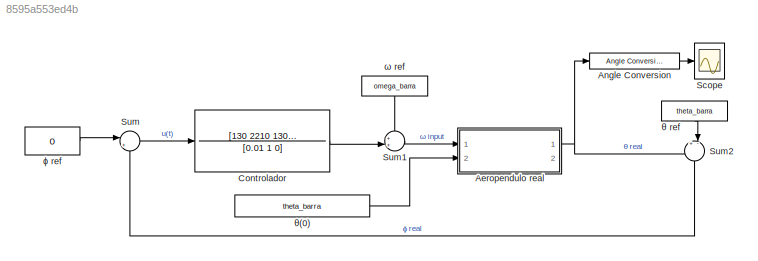
MODEL slx_8595a553ed4b
KIND model
CONFIG AbsTol = auto
CONFIG EnableMultiTasking = off
CONFIG FixedStep = 1e-3
CONFIG MaxStep = auto
CONFIG MinStep = auto
CONFIG RelTol = 1e-3
CONFIG SampleTimeConstraint = Unconstrained
CONFIG SolverName = ode4
CONFIG StartTime = 0.0
CONFIG StopTime = 10
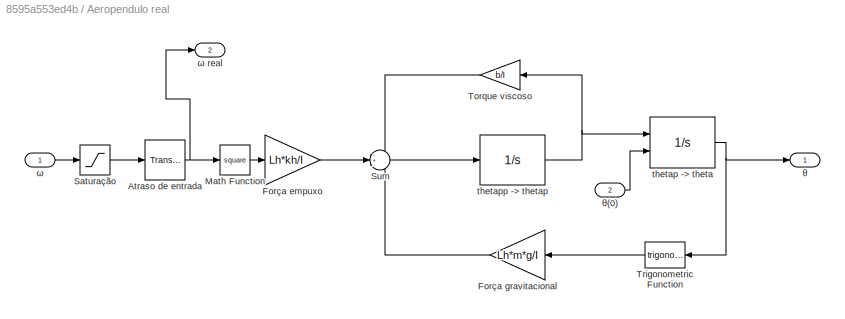
BLOCK [SubSystem] Aeropendulo real
  Ports = [2, 2]
  RequestExecContextInheritance = off
BLOCK [TransportDelay] Aeropendulo real/Atraso de entrada
  DelayTime = 5e-3
  Ports = [1, 1]
BLOCK [Gain] Aeropendulo real/Força empuxo
  Gain = Lh*kh/I
  OutMax = [375]
  OutMin = [0]
BLOCK [Gain] Aeropendulo real/Força gravitacional
  Gain = Lh*m*g/I
  NameLocation = top
BLOCK [Math] Aeropendulo real/Math Function
  Operator = square
  Ports = [1, 1]
BLOCK [Saturate] Aeropendulo real/Saturação
  LowerLimit = 0
  UpperLimit = 400
BLOCK [Sum] Aeropendulo real/Sum
  Inputs = -+-
  Ports = [3, 1]
BLOCK [Gain] Aeropendulo real/Torque viscoso
  Gain = b/I
  NameLocation = top
BLOCK [Trigonometry] Aeropendulo real/Trigonometric Function
  NameLocation = top
  Ports = [1, 1]
BLOCK [Integrator] Aeropendulo real/thetap -> theta
  InitialConditionSource = external
  Ports = [2, 1]
  UpperSaturationLimit = 120*pi/180
BLOCK [Integrator] Aeropendulo real/thetapp -> thetap
  Ports = [1, 1]
BLOCK [Outport] Aeropendulo real/θ
BLOCK [Inport] Aeropendulo real/θ(0)
  Port = 2
BLOCK [Inport] Aeropendulo real/ω
BLOCK [Outport] Aeropendulo real/ω real
  Port = 2
BLOCK [Reference] Angle Conversion  REF=aerolibconvert2/Angle Conversion
  Ports = [1, 1]
  SourceBlock = aerolibconvert2/Angle Conversion
  SourceProductBaseCode = AE
  SourceType = Angle Conversion
BLOCK [TransferFcn] Controlador
  Denominator = [0.01 1 0]
  Numerator = [130 2210 13000]
BLOCK [Scope] Scope
  Floating = off
  NumInputPorts = 1
  Ports = [1]
  ScopeSpecificationString = Simulink.scopes.TimeScopeBlockCfg('CurrentConfiguration', extmgr.ConfigurationSet(extmgr.Configuration('Core','General UI',true,'FigureColor',[1 1 1]),extmgr.Configuration('Core','Source UI',true),extmgr.Configuration('Sources','WiredSimulink',true),extmgr.Configuration('Visuals','Time Domain',true,'SerializedDisplays',{struct('MinYLimReal','78.02767','MaxYLimReal','94.85804','YLabelReal','','MinY...<+1676ch>
BLOCK [Sum] Sum
  Inputs = |+-
  Ports = [2, 1]
BLOCK [Sum] Sum1
  Inputs = ++|
  Ports = [2, 1]
BLOCK [Sum] Sum2
  Inputs = +-|
  NameLocation = left
  Ports = [2, 1]
BLOCK [Constant] θ ref
  NameLocation = left
  Value = theta_barra
BLOCK [Constant] θ(0)
  Value = theta_barra
BLOCK [Constant] ω ref
  NameLocation = left
  Value = omega_barra
BLOCK [Constant] ϕ ref
  Value = 0
NET Aeropendulo real/Atraso de entrada:1 -> Aeropendulo real/Math Function:1, Aeropendulo real/ω real:1
LINE Aeropendulo real/Força empuxo:1 -> Aeropendulo real/Sum:2
LINE Aeropendulo real/Força gravitacional:1 -> Aeropendulo real/Sum:3
LINE Aeropendulo real/Math Function:1 -> Aeropendulo real/Força empuxo:1
LINE Aeropendulo real/Saturação:1 -> Aeropendulo real/Atraso de entrada:1
LINE Aeropendulo real/Sum:1 -> Aeropendulo real/thetapp -> thetap:1
LINE Aeropendulo real/Torque viscoso:1 -> Aeropendulo real/Sum:1
LINE Aeropendulo real/Trigonometric Function:1 -> Aeropendulo real/Força gravitacional:1
NET Aeropendulo real/thetap -> theta:1 -> Aeropendulo real/Trigonometric Function:1, Aeropendulo real/θ:1
NET Aeropendulo real/thetapp -> thetap:1 -> Aeropendulo real/Torque viscoso:1, Aeropendulo real/thetap -> theta:1
LINE Aeropendulo real/θ(0):1 -> Aeropendulo real/thetap -> theta:2
LINE Aeropendulo real/ω:1 -> Aeropendulo real/Saturação:1
NET Aeropendulo real:1 -> Angle Conversion:1, Sum2:1
LINE Angle Conversion:1 -> Scope:1
LINE Controlador:1 -> Sum1:2
LINE Sum1:1 -> Aeropendulo real:1
LINE Sum2:1 -> Sum:2
LINE Sum:1 -> Controlador:1
LINE θ ref:1 -> Sum2:2
LINE θ(0):1 -> Aeropendulo real:2
LINE ω ref:1 -> Sum1:1
LINE ϕ ref:1 -> Sum:1
note: NET lines group one-source signal fan-out (src -> all destinations, sorted); 1:1 wires keep LINE
